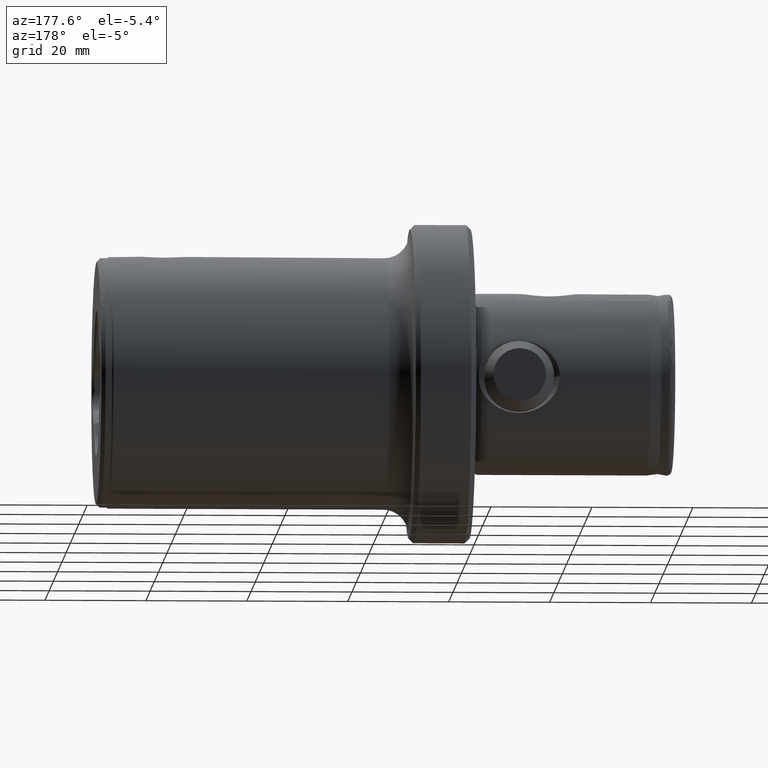
[diagram: clean part render]
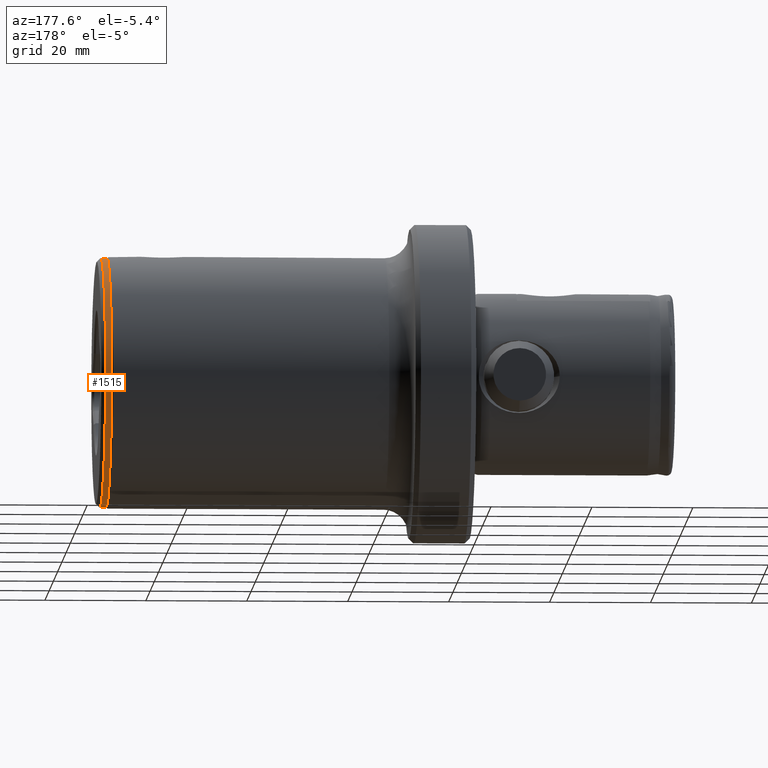
[diagram: same view with one face highlighted and labeled with its STEP entity id]
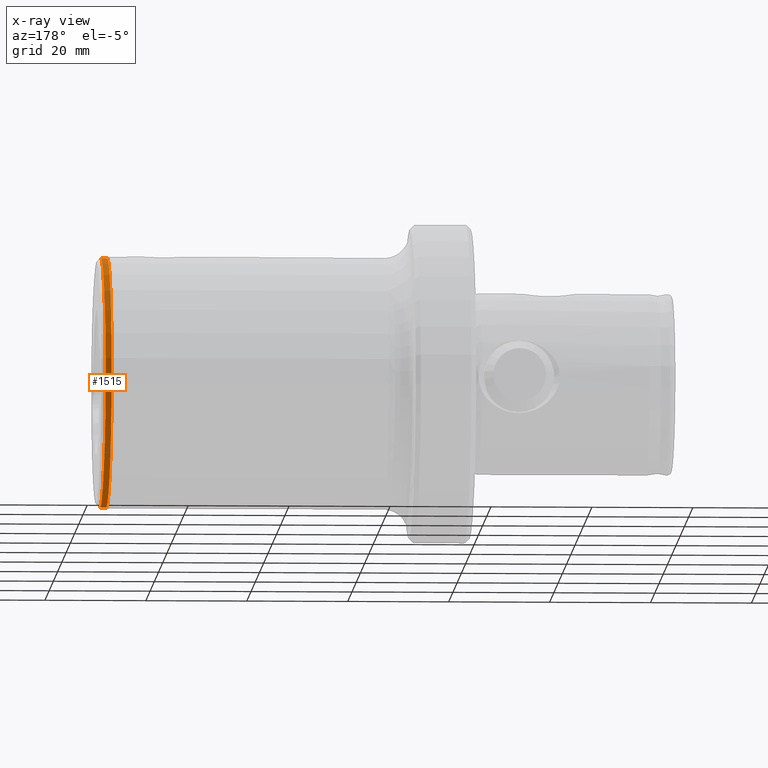
[diagram: x-ray of the same camera — body ghosted, the highlighted face saturated]
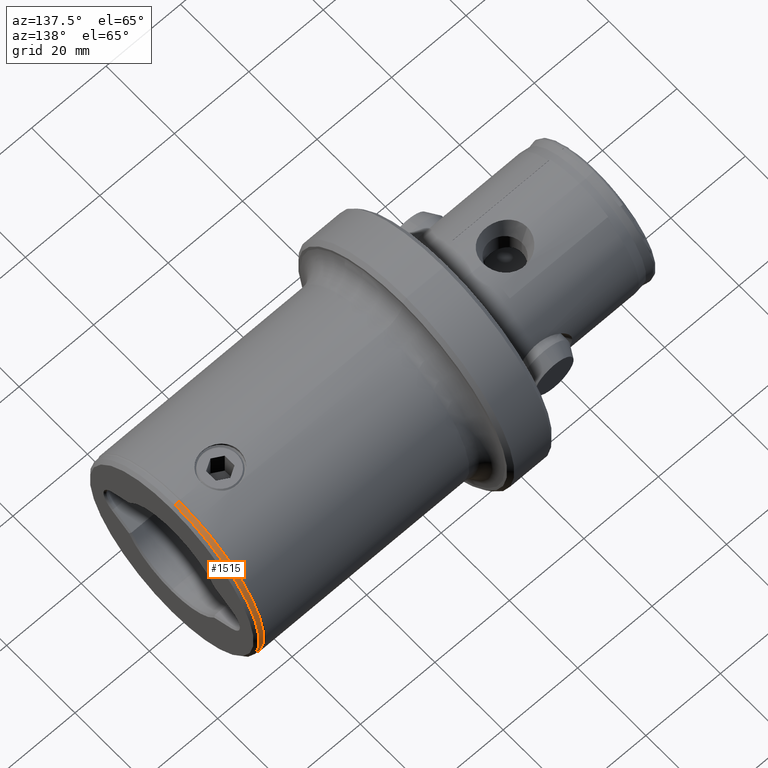
[diagram: same view with one face highlighted and labeled with its STEP entity id]
A machine part, auxiliary view. The second image highlights one B-rep face of the part: STEP entity #1515.
The next image is the same camera in x-ray: the body ghosted, the highlighted face saturated — about 0% of this face is hidden behind the body in this view.
A second angle (auxiliary view) of the same face is appended — the face is thin or edge-on in the first view.
In plain terms, the highlighted cylindrical surface (partial cylindrical patch) has radius 24.8 mm, axis along (-1, -0, -0).
Its self-contained STEP definition (entity closure, byte-faithful):
#803 = ORIENTED_EDGE ( 'NONE', *, *, #1300, .T. ) ;
#804 = ORIENTED_EDGE ( 'NONE', *, *, #1301, .F. ) ;
#805 = ORIENTED_EDGE ( 'NONE', *, *, #1299, .T. ) ;
#806 = ORIENTED_EDGE ( 'NONE', *, *, #1302, .F. ) ;
#1299 = EDGE_CURVE ( 'NONE', #1855, #1843, #2211, .T. ) ;
#1300 = EDGE_CURVE ( 'NONE', #1841, #1855, #3163, .T. ) ;
#1301 = EDGE_CURVE ( 'NONE', #1861, #1843, #3146, .T. ) ;
#1302 = EDGE_CURVE ( 'NONE', #1841, #1861, #2212, .T. ) ;
#1515 = ADVANCED_FACE ( 'NONE', ( #2383 ), #2384, .T. ) ;
#1841 = VERTEX_POINT ( 'NONE', #5070 ) ;
#1843 = VERTEX_POINT ( 'NONE', #5072 ) ;
#1855 = VERTEX_POINT ( 'NONE', #5084 ) ;
#1861 = VERTEX_POINT ( 'NONE', #5090 ) ;
#1888 = EDGE_LOOP ( 'NONE', ( #803, #805, #804, #806 ) ) ;
#2211 = LINE ( 'NONE', #3676, #3164 ) ;
#2212 = LINE ( 'NONE', #3684, #3168 ) ;
#2383 = FACE_OUTER_BOUND ( 'NONE', #1888, .T. ) ;
#2384 = CYLINDRICAL_SURFACE ( 'NONE', #4584, 24.80000000000000400 ) ;
#3146 = CIRCLE ( 'NONE', #3167, 24.80000000000000100 ) ;
#3163 = CIRCLE ( 'NONE', #3165, 24.80000000000000400 ) ;
#3164 = VECTOR ( 'NONE', #3677, 1000.000000000000000 ) ;
#3165 = AXIS2_PLACEMENT_3D ( 'NONE', #3678, #3679, #3680 ) ;
#3167 = AXIS2_PLACEMENT_3D ( 'NONE', #3681, #3682, #3683 ) ;
#3168 = VECTOR ( 'NONE', #3685, 1000.000000000000000 ) ;
#3676 = CARTESIAN_POINT ( 'NONE',  ( 0.0000000000000000000, 3.037124061885436300E-015, -24.80000000000000400 ) ) ;
#3677 = DIRECTION ( 'NONE',  ( -1.000000000000000000, -0.0000000000000000000, -0.0000000000000000000 ) ) ;
#3678 = CARTESIAN_POINT ( 'NONE',  ( 113.1999999999999900, 0.0000000000000000000, 0.0000000000000000000 ) ) ;
#3679 = DIRECTION ( 'NONE',  ( -1.000000000000000000, -0.0000000000000000000, -0.0000000000000000000 ) ) ;
#3680 = DIRECTION ( 'NONE',  ( 0.0000000000000000000, 0.0000000000000000000, 1.000000000000000000 ) ) ;
#3681 = CARTESIAN_POINT ( 'NONE',  ( 111.9999999999999900, 0.0000000000000000000, 0.0000000000000000000 ) ) ;
#3682 = DIRECTION ( 'NONE',  ( -1.000000000000000000, -0.0000000000000000000, -0.0000000000000000000 ) ) ;
#3683 = DIRECTION ( 'NONE',  ( 0.0000000000000000000, 0.0000000000000000000, 1.000000000000000000 ) ) ;
#3684 = CARTESIAN_POINT ( 'NONE',  ( 0.0000000000000000000, 0.0000000000000000000, 24.80000000000000400 ) ) ;
#3685 = DIRECTION ( 'NONE',  ( -1.000000000000000000, -0.0000000000000000000, -0.0000000000000000000 ) ) ;
#4584 = AXIS2_PLACEMENT_3D ( 'NONE', #4862, #4863, #4864 ) ;
#4862 = CARTESIAN_POINT ( 'NONE',  ( 0.0000000000000000000, 0.0000000000000000000, 0.0000000000000000000 ) ) ;
#4863 = DIRECTION ( 'NONE',  ( -1.000000000000000000, -0.0000000000000000000, -0.0000000000000000000 ) ) ;
#4864 = DIRECTION ( 'NONE',  ( 0.0000000000000000000, 0.0000000000000000000, 1.000000000000000000 ) ) ;
#5070 = CARTESIAN_POINT ( 'NONE',  ( 113.1999999999999900, 0.0000000000000000000, 24.80000000000000400 ) ) ;
#5072 = CARTESIAN_POINT ( 'NONE',  ( 111.9999999999999900, 3.037124061885435900E-015, -24.80000000000000100 ) ) ;
#5084 = CARTESIAN_POINT ( 'NONE',  ( 113.1999999999999900, 3.037124061885436300E-015, -24.80000000000000400 ) ) ;
#5090 = CARTESIAN_POINT ( 'NONE',  ( 111.9999999999999900, 0.0000000000000000000, 24.80000000000000100 ) ) ;